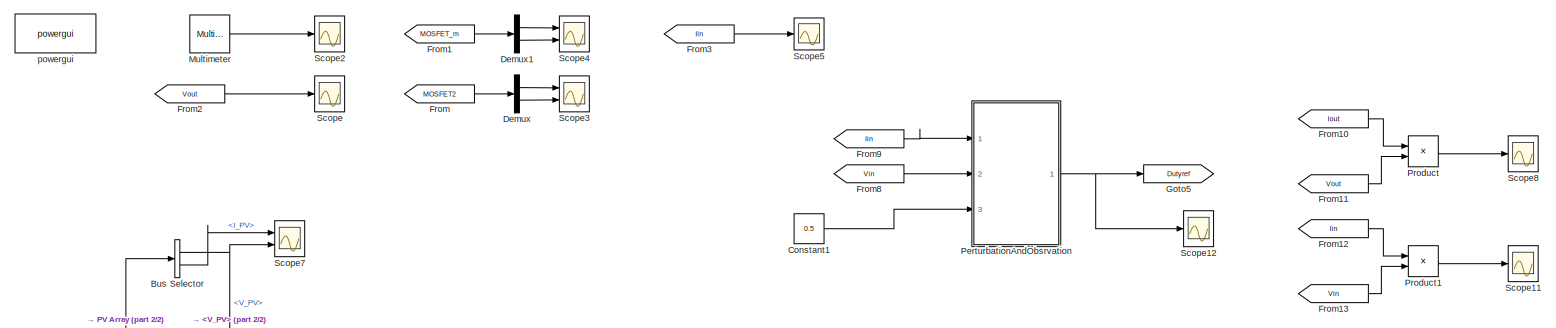
[diagram: root canvas - part 1/2, full width, top band]
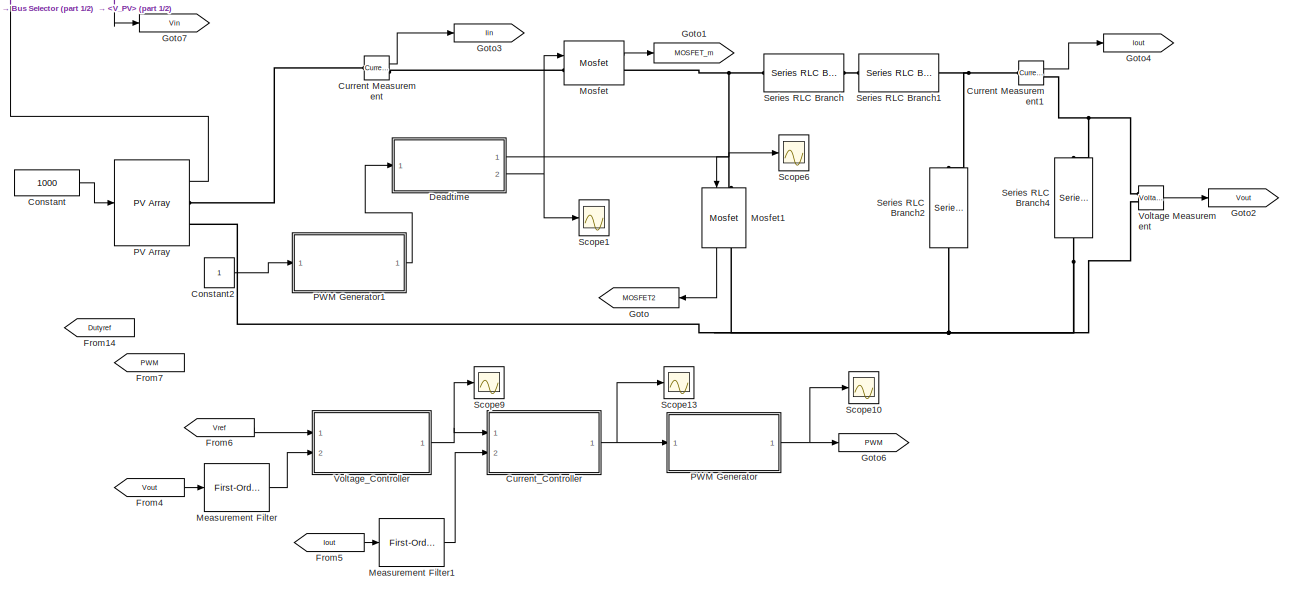
[diagram: root canvas - part 2/2, full width, bottom band]
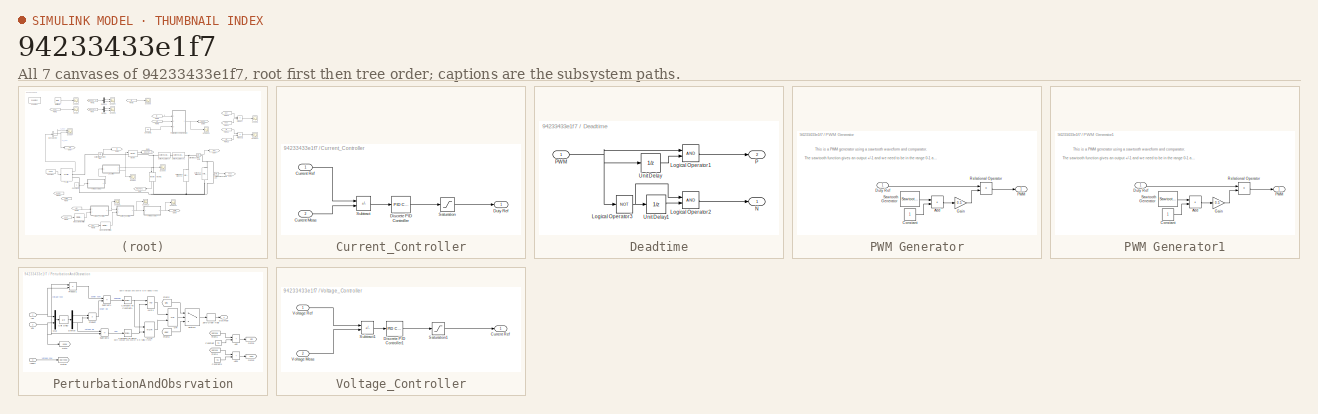
[diagram: thumbnail index - all 7 canvases of the model, root first then tree order]
MODEL slx_94233433e1f7
KIND model
CONFIG AbsTol = auto
CONFIG EnableMultiTasking = off
CONFIG FixedStep = auto
CONFIG MaxStep = auto
CONFIG MinStep = auto
CONFIG RelTol = 1e-3
CONFIG SampleTimeConstraint = Unconstrained
CONFIG SolverName = VariableStepAuto
CONFIG StartTime = 0.0
CONFIG StopTime = Run_Time
BLOCK [BusSelector] Bus Selector
  OutputSignals = V_PV,I_PV
  Ports = [1, 2]
BLOCK [Constant] Constant
  Value = 1000
BLOCK [Constant] Constant1
  Value = 0.5
BLOCK [Constant] Constant2
BLOCK [Reference] Current Measurement  REF=spsCurrentMeasurementLib/Current Measurement
  Ports = [0, 1, 0, 0, 0, 1, 1]
  SourceBlock = spsCurrentMeasurementLib/Current Measurement
  SourceProductBaseCode = PS
  SourceType = Current Measurement
  UserDataPersistent = on
BLOCK [Reference] Current Measurement1  REF=spsCurrentMeasurementLib/Current Measurement
  Ports = [0, 1, 0, 0, 0, 1, 1]
  SourceBlock = spsCurrentMeasurementLib/Current Measurement
  SourceProductBaseCode = PS
  SourceType = Current Measurement
  UserDataPersistent = on
BLOCK [SubSystem] Current_Controller
  Commented = on
  Ports = [2, 1]
  RequestExecContextInheritance = off
BLOCK [Inport] Current_Controller/Current Meas
  Port = 2
BLOCK [Inport] Current_Controller/Current Ref
BLOCK [Reference] Current_Controller/Discrete PID Controller  REF=slpidlib/PID Controller
  Ports = [1, 1]
  SourceBlock = slpidlib/PID Controller
  SourceProductBaseCode = SL
  SourceType = PID 1dof
BLOCK [Outport] Current_Controller/Duty Ref
BLOCK [Saturate] Current_Controller/Saturation
  LowerLimit = 0.02
  UpperLimit = 0.98
BLOCK [Sum] Current_Controller/Subtract
  IconShape = rectangular
  Inputs = +-
  Ports = [2, 1]
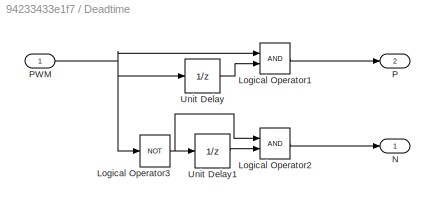
BLOCK [SubSystem] Deadtime
  Ports = [1, 2]
  RequestExecContextInheritance = off
BLOCK [Logic] Deadtime/Logical Operator1
  AllPortsSameDT = off
  OutDataTypeStr = boolean
  Ports = [2, 1]
BLOCK [Logic] Deadtime/Logical Operator2
  AllPortsSameDT = off
  OutDataTypeStr = boolean
  Ports = [2, 1]
BLOCK [Logic] Deadtime/Logical Operator3
  AllPortsSameDT = off
  Operator = NOT
  OutDataTypeStr = boolean
  Ports = [1, 1]
BLOCK [Outport] Deadtime/N
BLOCK [Outport] Deadtime/P
  Port = 2
BLOCK [Inport] Deadtime/PWM
BLOCK [UnitDelay] Deadtime/Unit Delay
  HasFrameUpgradeWarning = on
  SampleTime = -1
BLOCK [UnitDelay] Deadtime/Unit Delay1
  HasFrameUpgradeWarning = on
  SampleTime = -1
BLOCK [Demux] Demux
  Outputs = 2
  Ports = [1, 2]
BLOCK [Demux] Demux1
  Outputs = 2
  Ports = [1, 2]
BLOCK [From] From
  GotoTag = MOSFET2
BLOCK [From] From1
  GotoTag = MOSFET_m
BLOCK [From] From10
  GotoTag = Iout
BLOCK [From] From11
  GotoTag = Vout
BLOCK [From] From12
  GotoTag = Iin
BLOCK [From] From13
  GotoTag = Vin
BLOCK [From] From14
  Commented = on
  GotoTag = Dutyref
BLOCK [From] From2
  GotoTag = Vout
BLOCK [From] From3
  GotoTag = Iin
BLOCK [From] From4
  Commented = on
  GotoTag = Vout
BLOCK [From] From5
  Commented = on
  GotoTag = Iout
BLOCK [From] From6
  Commented = on
  GotoTag = Vref
BLOCK [From] From7
  Commented = on
  GotoTag = PWM
BLOCK [From] From8
  GotoTag = Vin
BLOCK [From] From9
  GotoTag = Iin
BLOCK [Goto] Goto
  GotoTag = MOSFET2
  NameLocation = top
BLOCK [Goto] Goto1
  GotoTag = MOSFET_m
BLOCK [Goto] Goto2
  GotoTag = Vout
BLOCK [Goto] Goto3
  GotoTag = Iin
BLOCK [Goto] Goto4
  GotoTag = Iout
BLOCK [Goto] Goto5
  GotoTag = Dutyref
BLOCK [Goto] Goto6
  Commented = on
  GotoTag = PWM
BLOCK [Goto] Goto7
  GotoTag = Vin
BLOCK [Reference] Measurement Filter  REF=spsFirstOrderFilterLib/First-Order
Filter
  Commented = on
  Ports = [1, 1]
  SourceBlock = spsFirstOrderFilterLib/First-Order\nFilter
  SourceProductBaseCode = PS
  SourceType = First-Order Filter
BLOCK [Reference] Measurement Filter1  REF=spsFirstOrderFilterLib/First-Order
Filter
  Commented = on
  Ports = [1, 1]
  SourceBlock = spsFirstOrderFilterLib/First-Order\nFilter
  SourceProductBaseCode = PS
  SourceType = First-Order Filter
BLOCK [Reference] Mosfet  REF=spsMosfetLib/Mosfet
  Ports = [1, 1, 0, 0, 0, 1, 1]
  SourceBlock = spsMosfetLib/Mosfet
  SourceProductBaseCode = PS
  SourceType = Mosfet
BLOCK [Reference] Mosfet1  REF=spsMosfetLib/Mosfet
  NameLocation = left
  Ports = [1, 1, 0, 0, 0, 1, 1]
  SourceBlock = spsMosfetLib/Mosfet
  SourceProductBaseCode = PS
  SourceType = Mosfet
BLOCK [Reference] Multimeter  REF=spsMultimeterLib/Multimeter
  Ports = [0, 1]
  SourceBlock = spsMultimeterLib/Multimeter
  SourceProductBaseCode = PS
  SourceType = Multimeter
BLOCK [Reference] PV Array  REF=spsPVArrayLib/PV Array
  Ports = [1, 1, 0, 0, 0, 0, 2]
  SourceBlock = spsPVArrayLib/PV Array
  SourceProductBaseCode = PS
  SourceType = PV array
BLOCK [SubSystem] PWM Generator
  Commented = on
  Ports = [1, 1]
  RequestExecContextInheritance = off
BLOCK [Sum] PWM Generator/Add
  IconShape = rectangular
  Ports = [2, 1]
BLOCK [Constant] PWM Generator/Constant
BLOCK [Inport] PWM Generator/Duty Ref
BLOCK [Gain] PWM Generator/Gain
  Gain = 0.5
BLOCK [Outport] PWM Generator/PWM
BLOCK [RelationalOperator] PWM Generator/Relational Operator
  InputSameDT = off
  Operator = >
  OutDataTypeStr = boolean
  Ports = [2, 1]
  RndMeth = Simplest
BLOCK [Reference] PWM Generator/Sawtooth Generator  REF=spsSawtoothGeneratorLib/Sawtooth
Generator
  Ports = [0, 1]
  SourceBlock = spsSawtoothGeneratorLib/Sawtooth\nGenerator
  SourceProductBaseCode = PS
  SourceType = Sawtooth Generator
BLOCK [SubSystem] PWM Generator1
  Ports = [1, 1]
  RequestExecContextInheritance = off
BLOCK [Sum] PWM Generator1/Add
  IconShape = rectangular
  Ports = [2, 1]
BLOCK [Constant] PWM Generator1/Constant
BLOCK [Inport] PWM Generator1/Duty Ref
BLOCK [Gain] PWM Generator1/Gain
  Gain = 0.5
BLOCK [Outport] PWM Generator1/PWM
BLOCK [RelationalOperator] PWM Generator1/Relational Operator
  InputSameDT = off
  Operator = >
  OutDataTypeStr = boolean
  Ports = [2, 1]
  RndMeth = Simplest
BLOCK [Reference] PWM Generator1/Sawtooth Generator  REF=spsSawtoothGeneratorLib/Sawtooth
Generator
  Ports = [0, 1]
  SourceBlock = spsSawtoothGeneratorLib/Sawtooth\nGenerator
  SourceProductBaseCode = PS
  SourceType = Sawtooth Generator
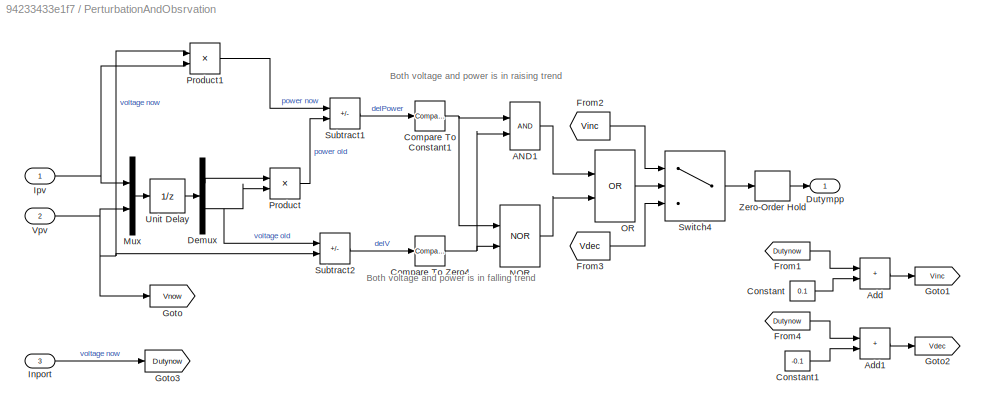
BLOCK [SubSystem] PerturbationAndObsrvation
  Ports = [3, 1]
  RequestExecContextInheritance = off
  VariantControl = perturbationAndObservation
BLOCK [Logic] PerturbationAndObsrvation/AND1
  AllPortsSameDT = off
  IconShape = distinctive
  OutDataTypeStr = boolean
  Ports = [2, 1]
BLOCK [Sum] PerturbationAndObsrvation/Add
  IconShape = rectangular
  Ports = [2, 1]
BLOCK [Sum] PerturbationAndObsrvation/Add1
  IconShape = rectangular
  Ports = [2, 1]
BLOCK [Reference] PerturbationAndObsrvation/Compare To Constant1  REF=simulink/Logic and Bit
Operations/Compare
To Constant
  Ports = [1, 1]
  SourceBlock = simulink/Logic and Bit\nOperations/Compare\nTo Constant
  SourceProductBaseCode = SL
  SourceType = Compare To Constant
BLOCK [Reference] PerturbationAndObsrvation/Compare To Zero4  REF=simulink/Logic and Bit
Operations/Compare
To Zero
  Ports = [1, 1]
  SourceBlock = simulink/Logic and Bit\nOperations/Compare\nTo Zero
  SourceProductBaseCode = SL
  SourceType = Compare To Zero
BLOCK [Constant] PerturbationAndObsrvation/Constant
  Value = 0.1
BLOCK [Constant] PerturbationAndObsrvation/Constant1
  Value = -0.1
BLOCK [Demux] PerturbationAndObsrvation/Demux
  Outputs = 2
  Ports = [1, 2]
BLOCK [Outport] PerturbationAndObsrvation/Dutympp
  NameLocation = top
  VectorParamsAs1DForOutWhenUnconnected = off
BLOCK [From] PerturbationAndObsrvation/From1
  GotoTag = Dutynow
BLOCK [From] PerturbationAndObsrvation/From2
  GotoTag = Vinc
BLOCK [From] PerturbationAndObsrvation/From3
  GotoTag = Vdec
BLOCK [From] PerturbationAndObsrvation/From4
  GotoTag = Dutynow
BLOCK [Goto] PerturbationAndObsrvation/Goto
  GotoTag = Vnow
BLOCK [Goto] PerturbationAndObsrvation/Goto1
  GotoTag = Vinc
BLOCK [Goto] PerturbationAndObsrvation/Goto2
  GotoTag = Vdec
BLOCK [Goto] PerturbationAndObsrvation/Goto3
  GotoTag = Dutynow
BLOCK [Inport] PerturbationAndObsrvation/Inport
  Port = 3
BLOCK [Inport] PerturbationAndObsrvation/Ipv
BLOCK [Mux] PerturbationAndObsrvation/Mux
  DisplayOption = bar
  Inputs = 2
  Ports = [2, 1]
BLOCK [Logic] PerturbationAndObsrvation/NOR
  AllPortsSameDT = off
  IconShape = distinctive
  Operator = NOR
  OutDataTypeStr = boolean
  Ports = [2, 1]
BLOCK [Logic] PerturbationAndObsrvation/OR
  AllPortsSameDT = off
  IconShape = distinctive
  Operator = OR
  OutDataTypeStr = boolean
  Ports = [2, 1]
BLOCK [Product] PerturbationAndObsrvation/Product
  Ports = [2, 1]
BLOCK [Product] PerturbationAndObsrvation/Product1
  Ports = [2, 1]
BLOCK [Sum] PerturbationAndObsrvation/Subtract1
  IconShape = rectangular
  Inputs = +-
  Ports = [2, 1]
BLOCK [Sum] PerturbationAndObsrvation/Subtract2
  IconShape = rectangular
  Inputs = -+
  Ports = [2, 1]
BLOCK [Switch] PerturbationAndObsrvation/Switch4
  Criteria = u2 ~= 0
  InputSameDT = off
  SaturateOnIntegerOverflow = off
BLOCK [UnitDelay] PerturbationAndObsrvation/Unit Delay
  HasFrameUpgradeWarning = on
  InitialCondition = solarPlant.startMPPTValue
  SampleTime = solarPlant.timeMPPT
BLOCK [Inport] PerturbationAndObsrvation/Vpv
  Port = 2
BLOCK [ZeroOrderHold] PerturbationAndObsrvation/Zero-Order Hold
  SampleTime = 20e-3
BLOCK [Product] Product
  Ports = [2, 1]
BLOCK [Product] Product1
  Ports = [2, 1]
BLOCK [Scope] Scope
  Floating = off
  NumInputPorts = 1
  Ports = [1]
  ScopeSpecificationString = Simulink.scopes.TimeScopeBlockCfg('CurrentConfiguration', extmgr.ConfigurationSet(extmgr.Configuration('Core','General UI',true),extmgr.Configuration('Core','Source UI',true),extmgr.Configuration('Sources','WiredSimulink',true,'DataLogging',true,'DataLoggingVariableName','Vout_Scope','DataLoggingMaxPoints','1000','DataLoggingSaveFormat','StructureWithTime'),extmgr.Configuration('Visuals','Time Dom...<+1566ch>
BLOCK [Scope] Scope1
  Floating = off
  NumInputPorts = 1
  Ports = [1]
  ScopeSpecificationString = Simulink.scopes.TimeScopeBlockCfg('CurrentConfiguration', extmgr.ConfigurationSet(extmgr.Configuration('Core','General UI',true),extmgr.Configuration('Core','Source UI',true),extmgr.Configuration('Sources','WiredSimulink',true,'DataLogging',true,'DataLoggingVariableName','PWM_Scope','DataLoggingMaxPoints','1000','DataLoggingSaveFormat','StructureWithTime'),extmgr.Configuration('Visuals','Time Doma...<+1552ch>
BLOCK [Scope] Scope10
  Commented = on
  Floating = off
  NumInputPorts = 1
  Ports = [1]
  ScopeSpecificationString = Simulink.scopes.TimeScopeBlockCfg('CurrentConfiguration', extmgr.ConfigurationSet(extmgr.Configuration('Core','General UI',true),extmgr.Configuration('Core','Source UI',true),extmgr.Configuration('Sources','WiredSimulink',true,'DataLoggingVariableName','ScopeData1','DataLoggingSaveFormat','StructureWithTime'),extmgr.Configuration('Visuals','Time Domain',true,'SerializedDisplays',{struct('MinYLimRe...<+1482ch>
BLOCK [Scope] Scope11
  Floating = off
  NumInputPorts = 1
  Ports = [1]
  ScopeSpecificationString = Simulink.scopes.TimeScopeBlockCfg('CurrentConfiguration', extmgr.ConfigurationSet(extmgr.Configuration('Core','General UI',true),extmgr.Configuration('Core','Source UI',true),extmgr.Configuration('Sources','WiredSimulink',true,'DataLogging',true,'DataLoggingVariableName','ScopeData4','DataLoggingMaxPoints','1000','DataLoggingSaveFormat','StructureWithTime'),extmgr.Configuration('Visuals','Time Dom...<+1561ch>
BLOCK [Scope] Scope12
  Floating = off
  NumInputPorts = 1
  Ports = [1]
  ScopeSpecificationString = Simulink.scopes.TimeScopeBlockCfg('CurrentConfiguration', extmgr.ConfigurationSet(extmgr.Configuration('Core','General UI',true),extmgr.Configuration('Core','Source UI',true),extmgr.Configuration('Sources','WiredSimulink',true,'DataLogging',true,'DataLoggingVariableName','ScopeData5','DataLoggingMaxPoints','1000','DataLoggingSaveFormat','StructureWithTime'),extmgr.Configuration('Visuals','Time Dom...<+1560ch>
BLOCK [Scope] Scope13
  Commented = on
  Floating = off
  NumInputPorts = 1
  Ports = [1]
  ScopeSpecificationString = Simulink.scopes.TimeScopeBlockCfg('CurrentConfiguration', extmgr.ConfigurationSet(extmgr.Configuration('Core','General UI',true),extmgr.Configuration('Core','Source UI',true),extmgr.Configuration('Sources','WiredSimulink',true,'DataLoggingVariableName','ScopeData6','DataLoggingSaveFormat','StructureWithTime'),extmgr.Configuration('Visuals','Time Domain',true,'SerializedDisplays',{struct('MinYLimRe...<+1495ch>
BLOCK [Scope] Scope2
  Floating = off
  NumInputPorts = 1
  Ports = [1]
  ScopeSpecificationString = Simulink.scopes.TimeScopeBlockCfg('CurrentConfiguration', extmgr.ConfigurationSet(extmgr.Configuration('Core','General UI',true),extmgr.Configuration('Core','Source UI',true),extmgr.Configuration('Sources','WiredSimulink',true,'DataLogging',true,'DataLoggingVariableName','IL_Scope','DataLoggingMaxPoints','1000','DataLoggingSaveFormat','StructureWithTime'),extmgr.Configuration('Visuals','Time Domai...<+1931ch>
BLOCK [Scope] Scope3
  Floating = off
  NumInputPorts = 2
  Ports = [2]
  ScopeSpecificationString = Simulink.scopes.TimeScopeBlockCfg('CurrentConfiguration', extmgr.ConfigurationSet(extmgr.Configuration('Core','General UI',true),extmgr.Configuration('Core','Source UI',true),extmgr.Configuration('Sources','WiredSimulink',true,'DataLogging',true,'DataLoggingVariableName','Diode_Scope','DataLoggingMaxPoints','1000','DataLoggingSaveFormat','StructureWithTime'),extmgr.Configuration('Visuals','Time Do...<+2158ch>
BLOCK [Scope] Scope4
  Floating = off
  NumInputPorts = 2
  Ports = [2]
  ScopeSpecificationString = Simulink.scopes.TimeScopeBlockCfg('CurrentConfiguration', extmgr.ConfigurationSet(extmgr.Configuration('Core','General UI',true),extmgr.Configuration('Core','Source UI',true),extmgr.Configuration('Sources','WiredSimulink',true,'DataLogging',true,'DataLoggingVariableName','MOSFET_Scope','DataLoggingMaxPoints','1000','DataLoggingSaveFormat','StructureWithTime'),extmgr.Configuration('Visuals','Time D...<+2159ch>
BLOCK [Scope] Scope5
  Floating = off
  NumInputPorts = 1
  Ports = [1]
  ScopeSpecificationString = Simulink.scopes.TimeScopeBlockCfg('CurrentConfiguration', extmgr.ConfigurationSet(extmgr.Configuration('Core','General UI',true),extmgr.Configuration('Core','Source UI',true),extmgr.Configuration('Sources','WiredSimulink',true,'DataLoggingVariableName','Iin_Scope','DataLogging',true,'DataLoggingSaveFormat','StructureWithTime'),extmgr.Configuration('Visuals','Time Domain',true,'SerializedDisplays',...<+1459ch>
BLOCK [Scope] Scope6
  Floating = off
  NumInputPorts = 1
  Ports = [1]
  ScopeSpecificationString = Simulink.scopes.TimeScopeBlockCfg('CurrentConfiguration', extmgr.ConfigurationSet(extmgr.Configuration('Core','General UI',true),extmgr.Configuration('Core','Source UI',true),extmgr.Configuration('Sources','WiredSimulink',true,'DataLogging',true,'DataLoggingVariableName','ScopeData1','DataLoggingMaxPoints','1000','DataLoggingSaveFormat','StructureWithTime'),extmgr.Configuration('Visuals','Time Dom...<+1574ch>
BLOCK [Scope] Scope7
  Floating = off
  NumInputPorts = 2
  Ports = [2]
  ScopeSpecificationString = Simulink.scopes.TimeScopeBlockCfg('CurrentConfiguration', extmgr.ConfigurationSet(extmgr.Configuration('Core','General UI',true),extmgr.Configuration('Core','Source UI',true),extmgr.Configuration('Sources','WiredSimulink',true,'DataLogging',true,'DataLoggingVariableName','ScopeData10','DataLoggingMaxPoints','1000','DataLoggingSaveFormat','StructureWithTime'),extmgr.Configuration('Visuals','Time Do...<+2155ch>
BLOCK [Scope] Scope8
  Floating = off
  NumInputPorts = 1
  Ports = [1]
  ScopeSpecificationString = Simulink.scopes.TimeScopeBlockCfg('CurrentConfiguration', extmgr.ConfigurationSet(extmgr.Configuration('Core','General UI',true),extmgr.Configuration('Core','Source UI',true),extmgr.Configuration('Sources','WiredSimulink',true,'DataLogging',true,'DataLoggingVariableName','ScopeData3','DataLoggingMaxPoints','1000','DataLoggingSaveFormat','StructureWithTime'),extmgr.Configuration('Visuals','Time Dom...<+1558ch>
BLOCK [Scope] Scope9
  Commented = on
  Floating = off
  NumInputPorts = 1
  Ports = [1]
  ScopeSpecificationString = Simulink.scopes.TimeScopeBlockCfg('CurrentConfiguration', extmgr.ConfigurationSet(extmgr.Configuration('Core','General UI',true),extmgr.Configuration('Core','Source UI',true),extmgr.Configuration('Sources','WiredSimulink',true,'DataLoggingVariableName','ScopeData2','DataLoggingSaveFormat','StructureWithTime'),extmgr.Configuration('Visuals','Time Domain',true,'SerializedDisplays',{struct('MinYLimRe...<+1498ch>
BLOCK [Reference] Series RLC Branch  REF=spsSeriesRLCBranchLib/Series RLC Branch
  Ports = [0, 0, 0, 0, 0, 1, 1]
  SourceBlock = spsSeriesRLCBranchLib/Series RLC Branch
  SourceProductBaseCode = PS
  SourceType = Series RLC Branch
BLOCK [Reference] Series RLC Branch1  REF=spsSeriesRLCBranchLib/Series RLC Branch
  Ports = [0, 0, 0, 0, 0, 1, 1]
  SourceBlock = spsSeriesRLCBranchLib/Series RLC Branch
  SourceProductBaseCode = PS
  SourceType = Series RLC Branch
BLOCK [Reference] Series RLC Branch2  REF=spsSeriesRLCBranchLib/Series RLC Branch
  NameLocation = left
  Ports = [0, 0, 0, 0, 0, 1, 1]
  SourceBlock = spsSeriesRLCBranchLib/Series RLC Branch
  SourceProductBaseCode = PS
  SourceType = Series RLC Branch
BLOCK [Reference] Series RLC Branch4  REF=spsSeriesRLCBranchLib/Series RLC Branch
  NameLocation = left
  Ports = [0, 0, 0, 0, 0, 1, 1]
  SourceBlock = spsSeriesRLCBranchLib/Series RLC Branch
  SourceProductBaseCode = PS
  SourceType = Series RLC Branch
BLOCK [Reference] Voltage Measurement  REF=spsVoltageMeasurementLib/Voltage Measurement
  Ports = [0, 1, 0, 0, 0, 2]
  SourceBlock = spsVoltageMeasurementLib/Voltage Measurement
  SourceProductBaseCode = PS
  SourceType = Voltage Measurement
  UserDataPersistent = on
BLOCK [SubSystem] Voltage_Controller
  Commented = on
  Ports = [2, 1]
  RequestExecContextInheritance = off
BLOCK [Outport] Voltage_Controller/Current Ref
BLOCK [Reference] Voltage_Controller/Discrete PID Controller1  REF=slpidlib/PID Controller
  Ports = [1, 1]
  SourceBlock = slpidlib/PID Controller
  SourceProductBaseCode = SL
  SourceType = PID 1dof
BLOCK [Saturate] Voltage_Controller/Saturation1
  LowerLimit = 0
  UpperLimit = 2
BLOCK [Sum] Voltage_Controller/Subtract1
  IconShape = rectangular
  Inputs = +-
  Ports = [2, 1]
BLOCK [Inport] Voltage_Controller/Voltage Meas
  Port = 2
BLOCK [Inport] Voltage_Controller/Voltage Ref
BLOCK [Reference] powergui  REF=spspowerguiLib/powergui
  Ports = []
  Priority = 1
  SourceBlock = spspowerguiLib/powergui
  SourceProductBaseCode = PS
  SourceType = PSB option menu block
ANNOTATION PWM Generator: This is a PWM generator using a sawtooth waveform and comparator. The sawtooth function gives an output +/-1 and we need to be in the range 0-1 and therefore needs offsetting.
ANNOTATION PWM Generator1: This is a PWM generator using a sawtooth waveform and comparator. The sawtooth function gives an output +/-1 and we need to be in the range 0-1 and therefore needs offsetting.
ANNOTATION PerturbationAndObsrvation: Both voltage and power is in falling trend
ANNOTATION PerturbationAndObsrvation: Both voltage and power is in raising trend
NET Bus Selector:1 -> Goto7:1, Scope7:2
LINE Bus Selector:2 -> Scope7:1
LINE Constant1:1 -> PerturbationAndObsrvation:3
LINE Constant2:1 -> PWM Generator1:1
LINE Constant:1 -> PV Array:1
LINE Current Measurement1:1 -> Goto4:1
LINE Current Measurement:1 -> Goto3:1
LINE Current_Controller/Current Meas:1 -> Current_Controller/Subtract:2
LINE Current_Controller/Current Ref:1 -> Current_Controller/Subtract:1
LINE Current_Controller/Discrete PID Controller:1 -> Current_Controller/Saturation:1
LINE Current_Controller/Saturation:1 -> Current_Controller/Duty Ref:1
LINE Current_Controller/Subtract:1 -> Current_Controller/Discrete PID Controller:1
NET Current_Controller:1 -> PWM Generator:1, Scope13:1
LINE Deadtime/Logical Operator1:1 -> Deadtime/P:1
LINE Deadtime/Logical Operator2:1 -> Deadtime/N:1
NET Deadtime/Logical Operator3:1 -> Deadtime/Logical Operator2:1, Deadtime/Unit Delay1:1
NET Deadtime/PWM:1 -> Deadtime/Logical Operator1:1, Deadtime/Logical Operator3:1, Deadtime/Unit Delay:1
LINE Deadtime/Unit Delay1:1 -> Deadtime/Logical Operator2:2
LINE Deadtime/Unit Delay:1 -> Deadtime/Logical Operator1:2
NET Deadtime:1 -> Mosfet1:1, Scope6:1
NET Deadtime:2 -> Mosfet:1, Scope1:1
LINE Demux1:1 -> Scope4:1
LINE Demux1:2 -> Scope4:2
LINE Demux:1 -> Scope3:1
LINE Demux:2 -> Scope3:2
LINE From10:1 -> Product:1
LINE From11:1 -> Product:2
LINE From12:1 -> Product1:1
LINE From13:1 -> Product1:2
LINE From1:1 -> Demux1:1
LINE From2:1 -> Scope:1
LINE From3:1 -> Scope5:1
LINE From4:1 -> Measurement Filter:1
LINE From5:1 -> Measurement Filter1:1
LINE From6:1 -> Voltage_Controller:1
LINE From8:1 -> PerturbationAndObsrvation:2
LINE From9:1 -> PerturbationAndObsrvation:1
LINE From:1 -> Demux:1
LINE Measurement Filter1:1 -> Current_Controller:2
LINE Measurement Filter:1 -> Voltage_Controller:2
LINE Mosfet1:1 -> Goto:1
LINE Mosfet:1 -> Goto1:1
LINE Multimeter:1 -> Scope2:1
LINE PV Array:1 -> Bus Selector:1
LINE PWM Generator/Add:1 -> PWM Generator/Gain:1
LINE PWM Generator/Constant:1 -> PWM Generator/Add:2
LINE PWM Generator/Duty Ref:1 -> PWM Generator/Relational Operator:1
LINE PWM Generator/Gain:1 -> PWM Generator/Relational Operator:2
LINE PWM Generator/Relational Operator:1 -> PWM Generator/PWM:1
LINE PWM Generator/Sawtooth Generator:1 -> PWM Generator/Add:1
LINE PWM Generator1/Add:1 -> PWM Generator1/Gain:1
LINE PWM Generator1/Constant:1 -> PWM Generator1/Add:2
LINE PWM Generator1/Duty Ref:1 -> PWM Generator1/Relational Operator:1
LINE PWM Generator1/Gain:1 -> PWM Generator1/Relational Operator:2
LINE PWM Generator1/Relational Operator:1 -> PWM Generator1/PWM:1
LINE PWM Generator1/Sawtooth Generator:1 -> PWM Generator1/Add:1
LINE PWM Generator1:1 -> Deadtime:1
NET PWM Generator:1 -> Goto6:1, Scope10:1
LINE PerturbationAndObsrvation/AND1:1 -> PerturbationAndObsrvation/OR:1
LINE PerturbationAndObsrvation/Add1:1 -> PerturbationAndObsrvation/Goto2:1
LINE PerturbationAndObsrvation/Add:1 -> PerturbationAndObsrvation/Goto1:1
NET PerturbationAndObsrvation/Compare To Constant1:1 -> PerturbationAndObsrvation/AND1:1, PerturbationAndObsrvation/NOR:1
NET PerturbationAndObsrvation/Compare To Zero4:1 -> PerturbationAndObsrvation/AND1:2, PerturbationAndObsrvation/NOR:2
LINE PerturbationAndObsrvation/Constant1:1 -> PerturbationAndObsrvation/Add1:2
LINE PerturbationAndObsrvation/Constant:1 -> PerturbationAndObsrvation/Add:2
LINE PerturbationAndObsrvation/Demux:1 -> PerturbationAndObsrvation/Product:1
NET PerturbationAndObsrvation/Demux:2 -> PerturbationAndObsrvation/Product:2, PerturbationAndObsrvation/Subtract2:1
LINE PerturbationAndObsrvation/From1:1 -> PerturbationAndObsrvation/Add:1
LINE PerturbationAndObsrvation/From2:1 -> PerturbationAndObsrvation/Switch4:1
LINE PerturbationAndObsrvation/From3:1 -> PerturbationAndObsrvation/Switch4:3
LINE PerturbationAndObsrvation/From4:1 -> PerturbationAndObsrvation/Add1:1
LINE PerturbationAndObsrvation/Inport:1 -> PerturbationAndObsrvation/Goto3:1
NET PerturbationAndObsrvation/Ipv:1 -> PerturbationAndObsrvation/Mux:1, PerturbationAndObsrvation/Product1:2
LINE PerturbationAndObsrvation/Mux:1 -> PerturbationAndObsrvation/Unit Delay:1
LINE PerturbationAndObsrvation/NOR:1 -> PerturbationAndObsrvation/OR:2
LINE PerturbationAndObsrvation/OR:1 -> PerturbationAndObsrvation/Switch4:2
LINE PerturbationAndObsrvation/Product1:1 -> PerturbationAndObsrvation/Subtract1:1
LINE PerturbationAndObsrvation/Product:1 -> PerturbationAndObsrvation/Subtract1:2
LINE PerturbationAndObsrvation/Subtract1:1 -> PerturbationAndObsrvation/Compare To Constant1:1
LINE PerturbationAndObsrvation/Subtract2:1 -> PerturbationAndObsrvation/Compare To Zero4:1
LINE PerturbationAndObsrvation/Switch4:1 -> PerturbationAndObsrvation/Zero-Order Hold:1
LINE PerturbationAndObsrvation/Unit Delay:1 -> PerturbationAndObsrvation/Demux:1
NET PerturbationAndObsrvation/Vpv:1 -> PerturbationAndObsrvation/Goto:1, PerturbationAndObsrvation/Mux:2, PerturbationAndObsrvation/Product1:1, PerturbationAndObsrvation/Subtract2:2
LINE PerturbationAndObsrvation/Zero-Order Hold:1 -> PerturbationAndObsrvation/Dutympp:1
NET PerturbationAndObsrvation:1 -> Goto5:1, Scope12:1
LINE Product1:1 -> Scope11:1
LINE Product:1 -> Scope8:1
LINE Voltage Measurement:1 -> Goto2:1
LINE Voltage_Controller/Discrete PID Controller1:1 -> Voltage_Controller/Saturation1:1
LINE Voltage_Controller/Saturation1:1 -> Voltage_Controller/Current Ref:1
LINE Voltage_Controller/Subtract1:1 -> Voltage_Controller/Discrete PID Controller1:1
LINE Voltage_Controller/Voltage Meas:1 -> Voltage_Controller/Subtract1:2
LINE Voltage_Controller/Voltage Ref:1 -> Voltage_Controller/Subtract1:1
NET Voltage_Controller:1 -> Current_Controller:1, Scope9:1
PNET net1: Current Measurement1:LConn1 -- Series RLC Branch1:RConn1 -- Series RLC Branch2:LConn1
PNET net2: Current Measurement1:RConn1 -- Series RLC Branch4:LConn1 -- Voltage Measurement:LConn1
PLINE Current Measurement:LConn1 -- PV Array:RConn1
PLINE Current Measurement:RConn1 -- Mosfet:LConn1
PNET net3: Mosfet1:LConn1 -- Mosfet:RConn1 -- Series RLC Branch:LConn1
PNET net4: Mosfet1:RConn1 -- PV Array:RConn2 -- Series RLC Branch2:RConn1 -- Series RLC Branch4:RConn1 -- Voltage Measurement:LConn2
PLINE Series RLC Branch1:LConn1 -- Series RLC Branch:RConn1
note: NET lines group one-source signal fan-out (src -> all destinations, sorted); 1:1 wires keep LINE; PNET lines group multi-terminal physical nets as a canonical sorted terminal list (undirected conserving connections); 2-terminal nets keep the pairwise PLINE form
